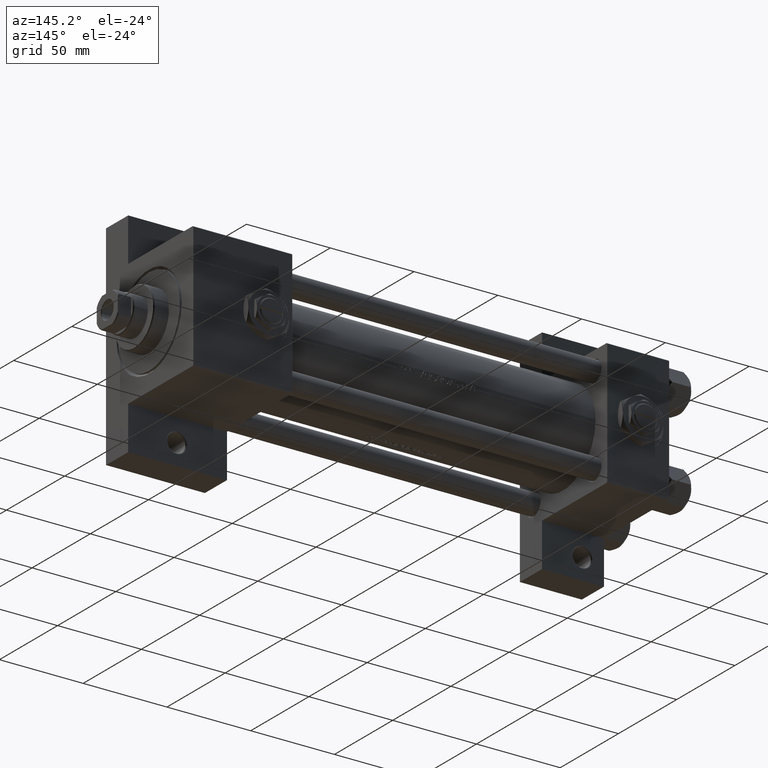
[diagram: clean part render]
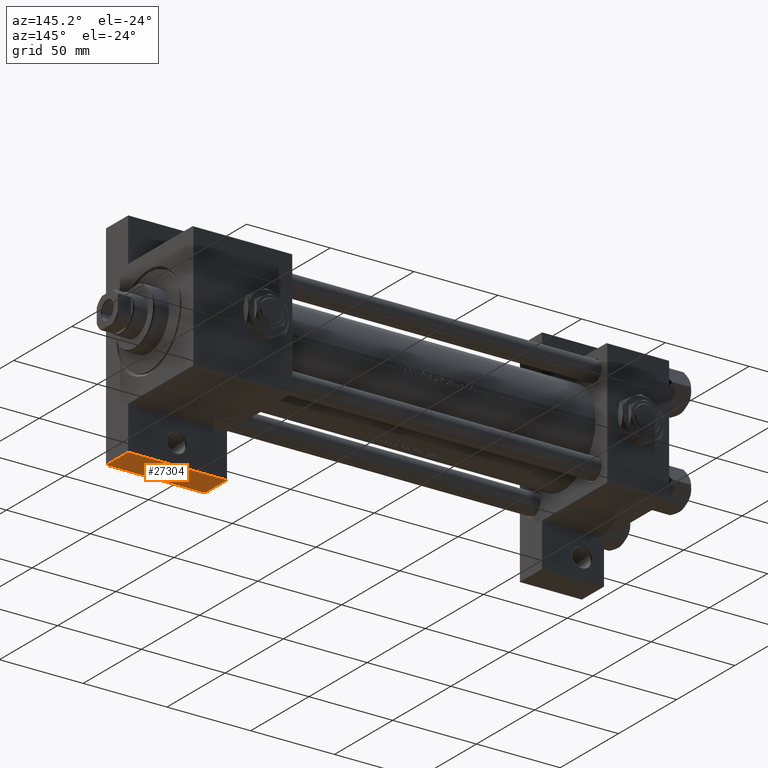
[diagram: same view with one face highlighted and labeled with its STEP entity id]
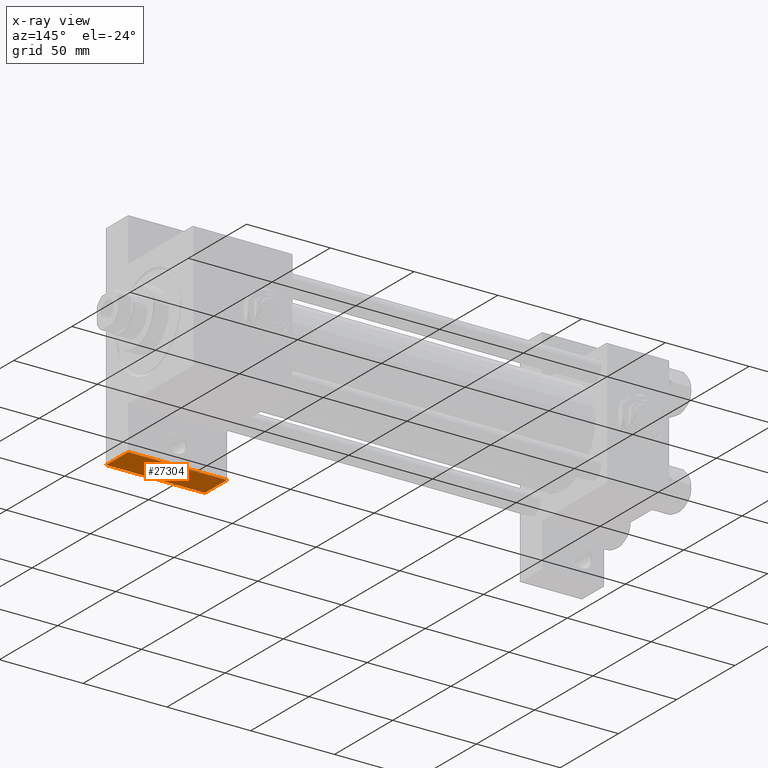
[diagram: x-ray of the same camera — body ghosted, the highlighted face saturated]
A machine part, auxiliary view. The second image highlights one B-rep face of the part: STEP entity #27304.
The next image is the same camera in x-ray: the body ghosted, the highlighted face saturated — about 0% of this face is hidden behind the body in this view.
In plain terms, the highlighted planar face has unit normal (0, 0, -1).
Its self-contained STEP definition (entity closure, byte-faithful):
#3334 = VECTOR ( 'NONE', #25351, 1000.000000000000000 ) ;
#3787 = VECTOR ( 'NONE', #43563, 1000.000000000000000 ) ;
#4484 = FACE_OUTER_BOUND ( 'NONE', #32175, .T. ) ;
#8692 = CARTESIAN_POINT ( 'NONE',  ( 225.0000000000000284, 63.50000000000000000, -18.50000000000000000 ) ) ;
#9360 = LINE ( 'NONE', #39614, #3787 ) ;
#10487 = LINE ( 'NONE', #48171, #3334 ) ;
#12166 = CARTESIAN_POINT ( 'NONE',  ( 284.0000000000000568, 63.49999999999997158, -37.50000000000000000 ) ) ;
#12320 = CARTESIAN_POINT ( 'NONE',  ( 284.0000000000000568, 63.49999999999997158, -18.50000000000000000 ) ) ;
#15445 = ORIENTED_EDGE ( 'NONE', *, *, #44808, .F. ) ;
#17606 = CARTESIAN_POINT ( 'NONE',  ( 225.0000000000000284, 63.50000000000000000, -37.50000000000000000 ) ) ;
#20085 = DIRECTION ( 'NONE',  ( -1.000000000000000000, 4.704334850106595794E-16, 0.000000000000000000 ) ) ;
#20210 = CARTESIAN_POINT ( 'NONE',  ( 284.0000000000000568, 63.49999999999997158, -18.50000000000000000 ) ) ;
#20402 = EDGE_CURVE ( 'NONE', #29431, #47119, #23479, .T. ) ;
#21091 = LINE ( 'NONE', #17606, #21706 ) ;
#21706 = VECTOR ( 'NONE', #36479, 1000.000000000000000 ) ;
#23479 = LINE ( 'NONE', #12320, #41236 ) ;
#23703 = EDGE_CURVE ( 'NONE', #24153, #29431, #10487, .T. ) ;
#23805 = DIRECTION ( 'NONE',  ( 4.704334850106595794E-16, 1.000000000000000000, 0.000000000000000000 ) ) ;
#24153 = VERTEX_POINT ( 'NONE', #39901 ) ;
#25351 = DIRECTION ( 'NONE',  ( 1.000000000000000000, -4.704334850106595794E-16, 0.000000000000000000 ) ) ;
#27304 = ADVANCED_FACE ( 'NONE', ( #4484 ), #27529, .T. ) ;
#27445 = DIRECTION ( 'NONE',  ( 0.000000000000000000, 0.000000000000000000, -1.000000000000000000 ) ) ;
#27529 = PLANE ( 'NONE',  #42995 ) ;
#28481 = CARTESIAN_POINT ( 'NONE',  ( 225.0000000000000284, 63.50000000000000000, -37.50000000000000000 ) ) ;
#29431 = VERTEX_POINT ( 'NONE', #20210 ) ;
#32175 = EDGE_LOOP ( 'NONE', ( #41993, #15445, #43267, #43169 ) ) ;
#32840 = EDGE_CURVE ( 'NONE', #39577, #47119, #21091, .T. ) ;
#36479 = DIRECTION ( 'NONE',  ( 1.000000000000000000, -4.704334850106595794E-16, 0.000000000000000000 ) ) ;
#39577 = VERTEX_POINT ( 'NONE', #28481 ) ;
#39614 = CARTESIAN_POINT ( 'NONE',  ( 225.0000000000000284, 63.50000000000000000, -18.50000000000000000 ) ) ;
#39901 = CARTESIAN_POINT ( 'NONE',  ( 225.0000000000000284, 63.50000000000000000, -18.50000000000000000 ) ) ;
#41236 = VECTOR ( 'NONE', #27445, 1000.000000000000000 ) ;
#41993 = ORIENTED_EDGE ( 'NONE', *, *, #32840, .F. ) ;
#42995 = AXIS2_PLACEMENT_3D ( 'NONE', #8692, #23805, #20085 ) ;
#43169 = ORIENTED_EDGE ( 'NONE', *, *, #20402, .T. ) ;
#43267 = ORIENTED_EDGE ( 'NONE', *, *, #23703, .T. ) ;
#43563 = DIRECTION ( 'NONE',  ( 0.000000000000000000, 0.000000000000000000, -1.000000000000000000 ) ) ;
#44808 = EDGE_CURVE ( 'NONE', #24153, #39577, #9360, .T. ) ;
#47119 = VERTEX_POINT ( 'NONE', #12166 ) ;
#48171 = CARTESIAN_POINT ( 'NONE',  ( 225.0000000000000284, 63.50000000000000000, -18.50000000000000000 ) ) ;